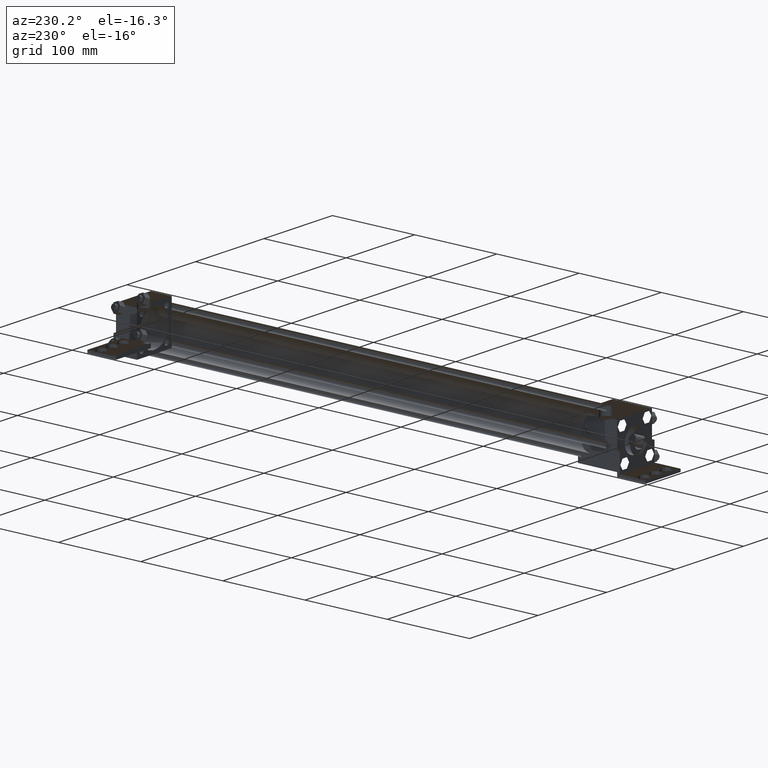
[diagram: clean part render]
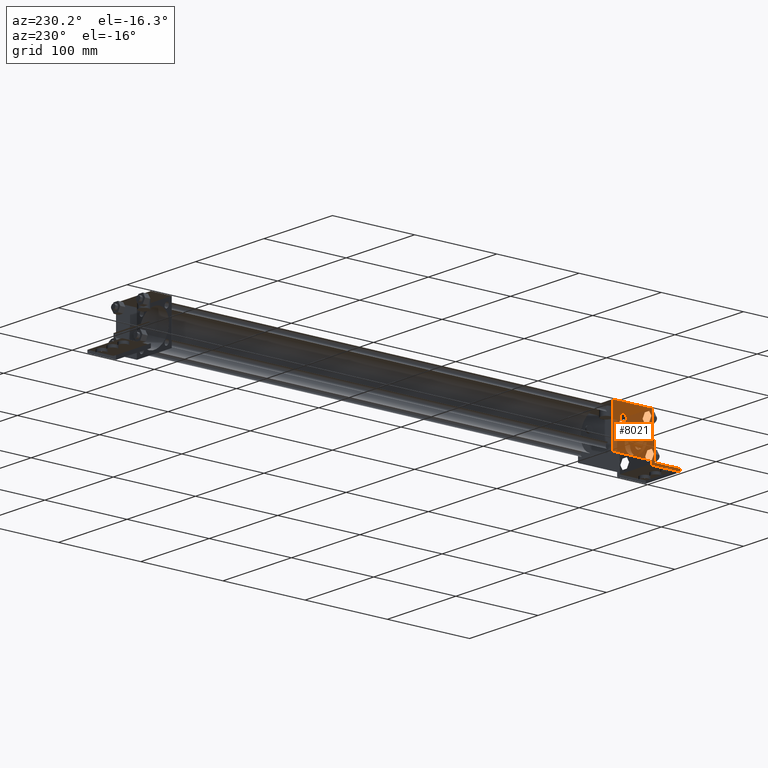
[diagram: same view with one face highlighted and labeled with its STEP entity id]
A machine part, auxiliary view. The second image highlights one B-rep face of the part: STEP entity #8021.
In plain terms, the highlighted planar face has unit normal (-1, 0, 0).
Its self-contained STEP definition (entity closure, byte-faithful):
#494=VERTEX_POINT('',#496);
#496=CARTESIAN_POINT('',(-2.540000000E+001,6.350000000E+001,-2.540000000E+001));
#498=EDGE_CURVE('',#503,#494,#499,.T.);
#499=LINE('',#500,#501);
#500=CARTESIAN_POINT('',(-2.540000000E+001,6.350000000E+001,2.540000000E+001));
#501=VECTOR('',#502,1.0E+000);
#502=DIRECTION('',(0.0E+000,0.0E+000,-1.0E+000));
#503=VERTEX_POINT('',#504);
#504=CARTESIAN_POINT('',(-2.540000000E+001,6.350000000E+001,2.540000000E+001));
#571=VERTEX_POINT('',#573);
#573=CARTESIAN_POINT('',(-2.540000000E+001,1.587500000E+001,-2.540000000E+001));
#575=EDGE_CURVE('',#494,#571,#576,.T.);
#576=LINE('',#577,#578);
#577=CARTESIAN_POINT('',(-2.540000000E+001,6.350000000E+001,-2.540000000E+001));
#578=VECTOR('',#579,1.0E+000);
#579=DIRECTION('',(0.0E+000,-1.0E+000,0.0E+000));
#694=VERTEX_POINT('',#695);
#695=CARTESIAN_POINT('',(-2.540000000E+001,1.587500000E+001,2.540000000E+001));
#696=EDGE_CURVE('',#503,#694,#697,.T.);
#697=LINE('',#698,#699);
#698=CARTESIAN_POINT('',(-2.540000000E+001,6.350000000E+001,2.540000000E+001));
#699=VECTOR('',#700,1.0E+000);
#700=DIRECTION('',(0.0E+000,-1.0E+000,0.0E+000));
#706=FACE_OUTER_BOUND('',#708,.T.);
#707=FACE_BOUND('',#709,.T.);
#708=EDGE_LOOP('',(#710));
#709=EDGE_LOOP('',(#719,#720,#721,#722,#723,#724,#725,#726,#727,#728));
#710=ORIENTED_EDGE('',*,*,#711,.T.);
#711=EDGE_CURVE('',#717,#717,#712,.T.);
#712=CIRCLE('',#713,3.968750000E+000);
#713=AXIS2_PLACEMENT_3D('',#714,#715,#716);
#714=CARTESIAN_POINT('',(-2.540000000E+001,5.080000000E+001,9.525000000E+000));
#715=DIRECTION('',(1.0E+000,0.0E+000,0.0E+000));
#716=DIRECTION('',(0.0E+000,0.0E+000,1.0E+000));
#717=VERTEX_POINT('',#718);
#718=CARTESIAN_POINT('',(-2.540000000E+001,5.080000000E+001,1.349375000E+001));
#719=ORIENTED_EDGE('',*,*,#729,.F.);
#720=ORIENTED_EDGE('',*,*,#696,.F.);
#721=ORIENTED_EDGE('',*,*,#498,.T.);
#722=ORIENTED_EDGE('',*,*,#575,.T.);
#723=ORIENTED_EDGE('',*,*,#736,.F.);
#724=ORIENTED_EDGE('',*,*,#743,.F.);
#725=ORIENTED_EDGE('',*,*,#750,.F.);
#726=ORIENTED_EDGE('',*,*,#757,.F.);
#727=ORIENTED_EDGE('',*,*,#764,.F.);
#728=ORIENTED_EDGE('',*,*,#771,.F.);
#729=EDGE_CURVE('',#694,#734,#730,.T.);
#730=LINE('',#731,#732);
#731=CARTESIAN_POINT('',(-2.540000000E+001,1.587500000E+001,2.540000000E+001));
#732=VECTOR('',#733,1.0E+000);
#733=DIRECTION('',(0.0E+000,0.0E+000,-1.0E+000));
#734=VERTEX_POINT('',#735);
#735=CARTESIAN_POINT('',(-2.540000000E+001,1.587500000E+001,-4.762500000E+000));
#736=EDGE_CURVE('',#741,#571,#737,.T.);
#737=LINE('',#738,#739);
#738=CARTESIAN_POINT('',(-2.540000000E+001,1.587500000E+001,-3.016250000E+001));
#739=VECTOR('',#740,1.0E+000);
#740=DIRECTION('',(0.0E+000,0.0E+000,1.0E+000));
#741=VERTEX_POINT('',#742);
#742=CARTESIAN_POINT('',(-2.540000000E+001,1.587500000E+001,-3.016250000E+001));
#743=EDGE_CURVE('',#748,#741,#744,.T.);
#744=LINE('',#745,#746);
#745=CARTESIAN_POINT('',(-2.540000000E+001,-1.905000000E+001,-3.016250000E+001));
#746=VECTOR('',#747,1.0E+000);
#747=DIRECTION('',(0.0E+000,1.0E+000,0.0E+000));
#748=VERTEX_POINT('',#749);
#749=CARTESIAN_POINT('',(-2.540000000E+001,-1.905000000E+001,-3.016250000E+001));
#750=EDGE_CURVE('',#755,#748,#751,.T.);
#751=LINE('',#752,#753);
#752=CARTESIAN_POINT('',(-2.540000000E+001,-1.905000000E+001,-2.698750000E+001));
#753=VECTOR('',#754,1.0E+000);
#754=DIRECTION('',(0.0E+000,0.0E+000,-1.0E+000));
#755=VERTEX_POINT('',#756);
#756=CARTESIAN_POINT('',(-2.540000000E+001,-1.905000000E+001,-2.698750000E+001));
#757=EDGE_CURVE('',#762,#755,#758,.T.);
#758=LINE('',#759,#760);
#759=CARTESIAN_POINT('',(-2.540000000E+001,1.270000000E+001,-2.698750000E+001));
#760=VECTOR('',#761,1.0E+000);
#761=DIRECTION('',(0.0E+000,-1.0E+000,0.0E+000));
#762=VERTEX_POINT('',#763);
#763=CARTESIAN_POINT('',(-2.540000000E+001,1.270000000E+001,-2.698750000E+001));
#764=EDGE_CURVE('',#769,#762,#765,.T.);
#765=LINE('',#766,#767);
#766=CARTESIAN_POINT('',(-2.540000000E+001,1.270000000E+001,-4.762500000E+000));
#767=VECTOR('',#768,1.0E+000);
#768=DIRECTION('',(0.0E+000,0.0E+000,-1.0E+000));
#769=VERTEX_POINT('',#770);
#770=CARTESIAN_POINT('',(-2.540000000E+001,1.270000000E+001,-4.762500000E+000));
#771=EDGE_CURVE('',#734,#769,#772,.T.);
#772=LINE('',#773,#774);
#773=CARTESIAN_POINT('',(-2.540000000E+001,1.587500000E+001,-4.762500000E+000));
#774=VECTOR('',#775,1.0E+000);
#775=DIRECTION('',(0.0E+000,-1.0E+000,0.0E+000));
#776=PLANE('',#777);
#777=AXIS2_PLACEMENT_3D('',#778,#779,#780);
#778=CARTESIAN_POINT('',(-2.540000000E+001,6.350000000E+001,2.540000000E+001));
#779=DIRECTION('',(-1.0E+000,0.0E+000,0.0E+000));
#780=DIRECTION('',(0.0E+000,0.0E+000,1.0E+000));
#8021=ADVANCED_FACE('',(#706,#707),#776,.T.);